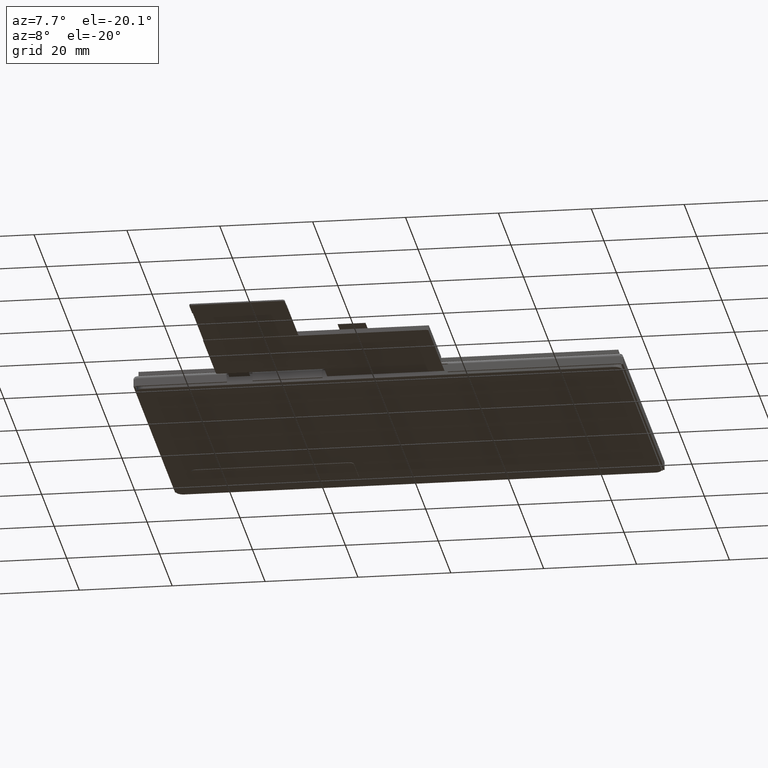
[diagram: clean part render]
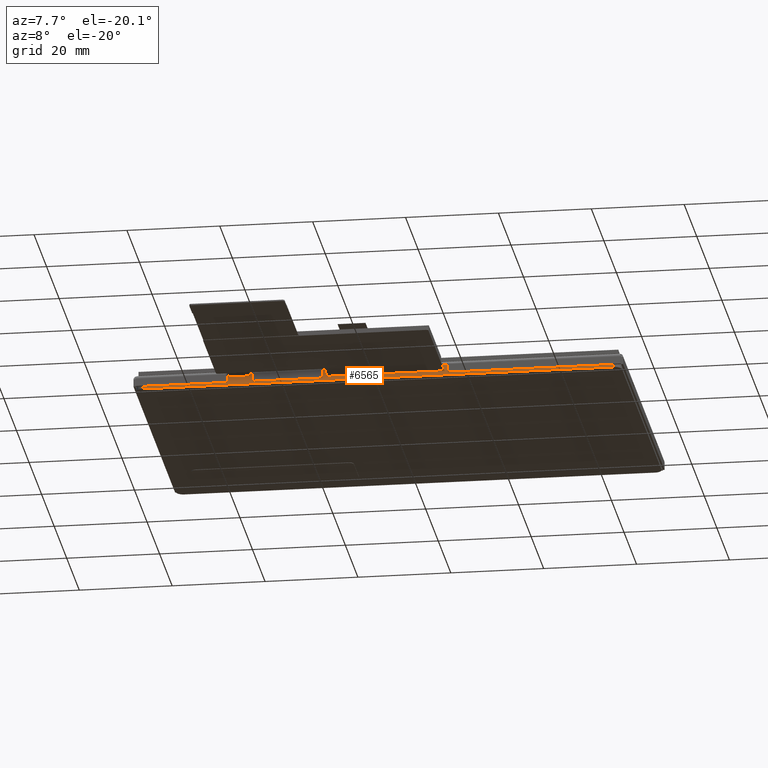
[diagram: same view with one face highlighted and labeled with its STEP entity id]
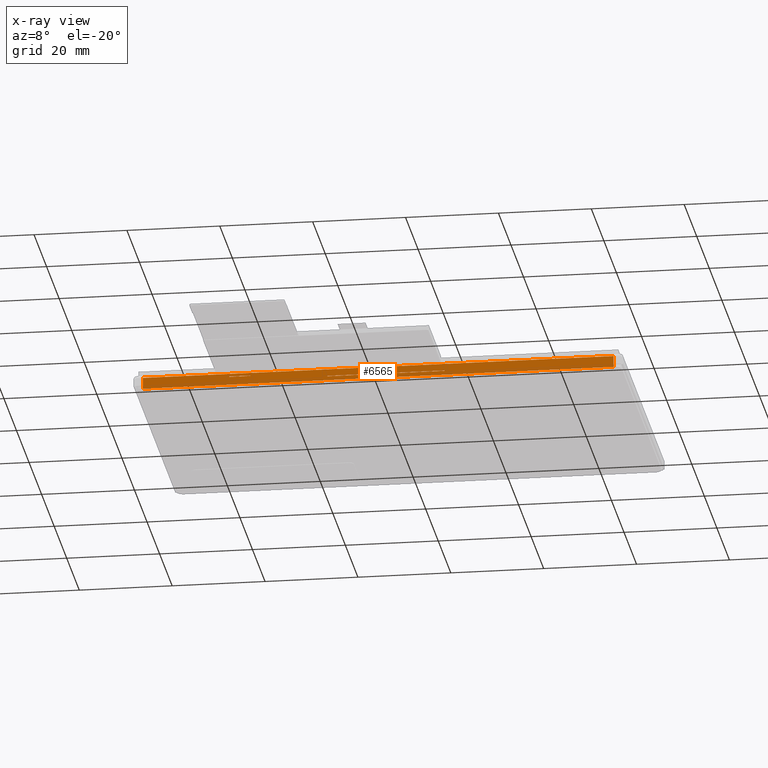
[diagram: x-ray of the same camera — body ghosted, the highlighted face saturated]
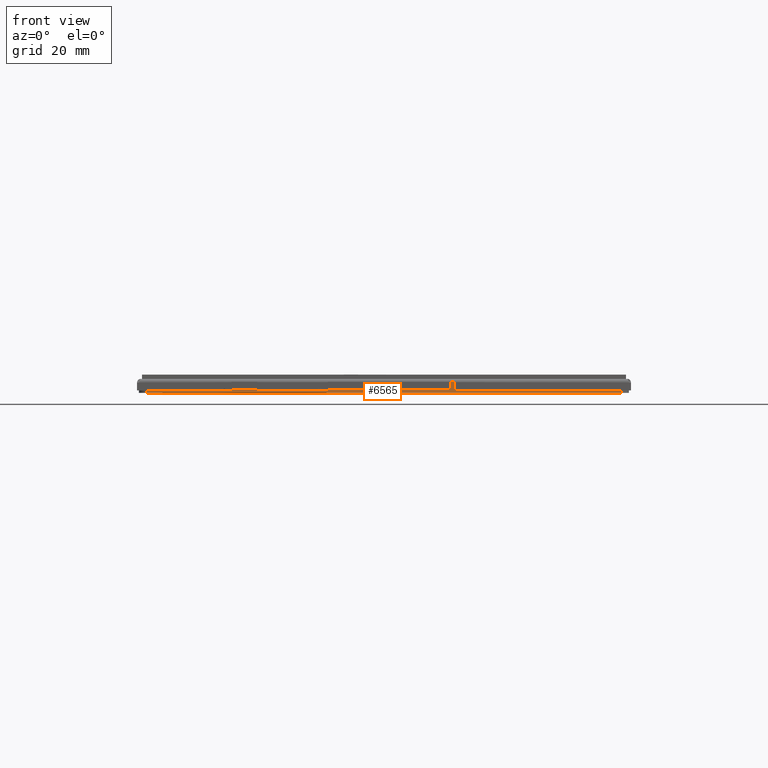
[diagram: same view with one face highlighted and labeled with its STEP entity id]
A machine part, auxiliary view. The second image highlights one B-rep face of the part: STEP entity #6565.
The next image is the same camera in x-ray: the body ghosted, the highlighted face saturated — about 0% of this face is hidden behind the body in this view.
A second angle (front view) of the same face is appended — the face is thin or edge-on in the first view.
In plain terms, the highlighted planar face has unit normal (-0, -1, 0).
Its self-contained STEP definition (entity closure, byte-faithful):
#51=FACE_BOUND('',#770,.T.);
#52=FACE_BOUND('',#771,.T.);
#103=PLANE('',#6951);
#417=FACE_OUTER_BOUND('',#769,.T.);
#769=EDGE_LOOP('',(#4747,#4748,#4749,#4750));
#770=EDGE_LOOP('',(#4751,#4752,#4753,#4754));
#771=EDGE_LOOP('',(#4755,#4756,#4757,#4758));
#1200=LINE('',#9249,#2093);
#1203=LINE('',#9255,#2096);
#1205=LINE('',#9260,#2098);
#1206=LINE('',#9262,#2099);
#1207=LINE('',#9264,#2100);
#1208=LINE('',#9265,#2101);
#1209=LINE('',#9268,#2102);
#1210=LINE('',#9270,#2103);
#1211=LINE('',#9272,#2104);
#1212=LINE('',#9273,#2105);
#1213=LINE('',#9275,#2106);
#1214=LINE('',#9276,#2107);
#2093=VECTOR('',#7521,4.5);
#2096=VECTOR('',#7526,0.1);
#2098=VECTOR('',#7530,10.);
#2099=VECTOR('',#7531,2.8);
#2100=VECTOR('',#7532,101.36);
#2101=VECTOR('',#7533,2.8);
#2102=VECTOR('',#7534,10.);
#2103=VECTOR('',#7535,10.);
#2104=VECTOR('',#7536,10.);
#2105=VECTOR('',#7537,10.);
#2106=VECTOR('',#7538,0.1);
#2107=VECTOR('',#7539,4.5);
#3020=VERTEX_POINT('',#9246);
#3021=VERTEX_POINT('',#9248);
#3023=VERTEX_POINT('',#9254);
#3024=VERTEX_POINT('',#9258);
#3025=VERTEX_POINT('',#9259);
#3026=VERTEX_POINT('',#9261);
#3027=VERTEX_POINT('',#9263);
#3028=VERTEX_POINT('',#9266);
#3029=VERTEX_POINT('',#9267);
#3030=VERTEX_POINT('',#9269);
#3031=VERTEX_POINT('',#9271);
#3032=VERTEX_POINT('',#9274);
#3685=EDGE_CURVE('',#3020,#3021,#1200,.T.);
#3688=EDGE_CURVE('',#3021,#3023,#1203,.T.);
#3690=EDGE_CURVE('',#3024,#3025,#1205,.T.);
#3691=EDGE_CURVE('',#3025,#3026,#1206,.T.);
#3692=EDGE_CURVE('',#3026,#3027,#1207,.T.);
#3693=EDGE_CURVE('',#3024,#3027,#1208,.T.);
#3694=EDGE_CURVE('',#3028,#3029,#1209,.T.);
#3695=EDGE_CURVE('',#3029,#3030,#1210,.T.);
#3696=EDGE_CURVE('',#3030,#3031,#1211,.T.);
#3697=EDGE_CURVE('',#3031,#3028,#1212,.T.);
#3698=EDGE_CURVE('',#3032,#3020,#1213,.T.);
#3699=EDGE_CURVE('',#3023,#3032,#1214,.T.);
#4747=ORIENTED_EDGE('',*,*,#3690,.T.);
#4748=ORIENTED_EDGE('',*,*,#3691,.T.);
#4749=ORIENTED_EDGE('',*,*,#3692,.T.);
#4750=ORIENTED_EDGE('',*,*,#3693,.F.);
#4751=ORIENTED_EDGE('',*,*,#3694,.T.);
#4752=ORIENTED_EDGE('',*,*,#3695,.T.);
#4753=ORIENTED_EDGE('',*,*,#3696,.T.);
#4754=ORIENTED_EDGE('',*,*,#3697,.T.);
#4755=ORIENTED_EDGE('',*,*,#3688,.F.);
#4756=ORIENTED_EDGE('',*,*,#3685,.F.);
#4757=ORIENTED_EDGE('',*,*,#3698,.F.);
#4758=ORIENTED_EDGE('',*,*,#3699,.F.);
#6565=ADVANCED_FACE('',(#417,#51,#52),#103,.T.);
#6951=AXIS2_PLACEMENT_3D('',#9257,#7528,#7529);
#7521=DIRECTION('',(-1.,2.16453909658425E-16,0.));
#7526=DIRECTION('',(0.,0.,-1.));
#7528=DIRECTION('center_axis',(-2.16453909658425E-16,-1.,0.));
#7529=DIRECTION('ref_axis',(1.,-2.16453909658425E-16,0.));
#7530=DIRECTION('',(-1.,2.16453909658425E-16,0.));
#7531=DIRECTION('',(0.,0.,-1.));
#7532=DIRECTION('',(1.,-2.16453909658425E-16,0.));
#7533=DIRECTION('',(0.,0.,-1.));
#7534=DIRECTION('',(0.,0.,-1.));
#7535=DIRECTION('',(-1.,2.16453909658425E-16,0.));
#7536=DIRECTION('',(0.,0.,1.));
#7537=DIRECTION('',(1.,-2.16453909658425E-16,0.));
#7538=DIRECTION('',(0.,0.,1.));
#7539=DIRECTION('',(1.,-2.16453909658425E-16,0.));
#9246=CARTESIAN_POINT('',(-27.5800000000004,-35.4220000000002,-2.));
#9248=CARTESIAN_POINT('',(-32.0800000000003,-35.4220000000002,-2.));
#9249=CARTESIAN_POINT('',(-27.5800000000004,-35.4220000000002,-2.));
#9254=CARTESIAN_POINT('',(-32.0800000000003,-35.4220000000002,-2.1));
#9255=CARTESIAN_POINT('',(-32.0800000000003,-35.4220000000002,-2.));
#9257=CARTESIAN_POINT('Origin',(-52.3000000000003,-35.4220000000002,-4.1));
#9258=CARTESIAN_POINT('',(50.6599999999997,-35.4220000000002,-1.43542486889356));
#9259=CARTESIAN_POINT('',(-50.7000000000004,-35.4220000000002,-1.43542486889356));
#9260=CARTESIAN_POINT('',(-190.09944,-35.4220000000002,-1.43542486889356));
#9261=CARTESIAN_POINT('',(-50.7000000000004,-35.4220000000002,-3.90000000000001));
#9262=CARTESIAN_POINT('',(-50.7000000000004,-35.4220000000002,-1.3));
#9263=CARTESIAN_POINT('',(50.6599999999997,-35.4220000000002,-3.90000000000001));
#9264=CARTESIAN_POINT('',(-50.7000000000004,-35.4220000000002,-3.90000000000001));
#9265=CARTESIAN_POINT('',(50.6599999999997,-35.4220000000002,-1.3));
#9266=CARTESIAN_POINT('',(14.2499999999998,-35.4220000000002,-2.90000000000001));
#9267=CARTESIAN_POINT('',(14.2499999999998,-35.4220000000002,-3.00000000000001));
#9268=CARTESIAN_POINT('',(14.2499999999998,-35.4220000000002,-3.55));
#9269=CARTESIAN_POINT('',(-11.0000000000002,-35.4220000000002,-3.00000000000001));
#9270=CARTESIAN_POINT('',(-31.6500000000002,-35.4220000000002,-3.00000000000001));
#9271=CARTESIAN_POINT('',(-11.0000000000002,-35.4220000000002,-2.90000000000001));
#9272=CARTESIAN_POINT('',(-11.0000000000002,-35.4220000000002,-3.55));
#9273=CARTESIAN_POINT('',(-31.6500000000002,-35.4220000000002,-2.90000000000001));
#9274=CARTESIAN_POINT('',(-27.5800000000004,-35.4220000000002,-2.1));
#9275=CARTESIAN_POINT('',(-27.5800000000004,-35.4220000000002,-2.1));
#9276=CARTESIAN_POINT('',(-32.0800000000003,-35.4220000000002,-2.1));